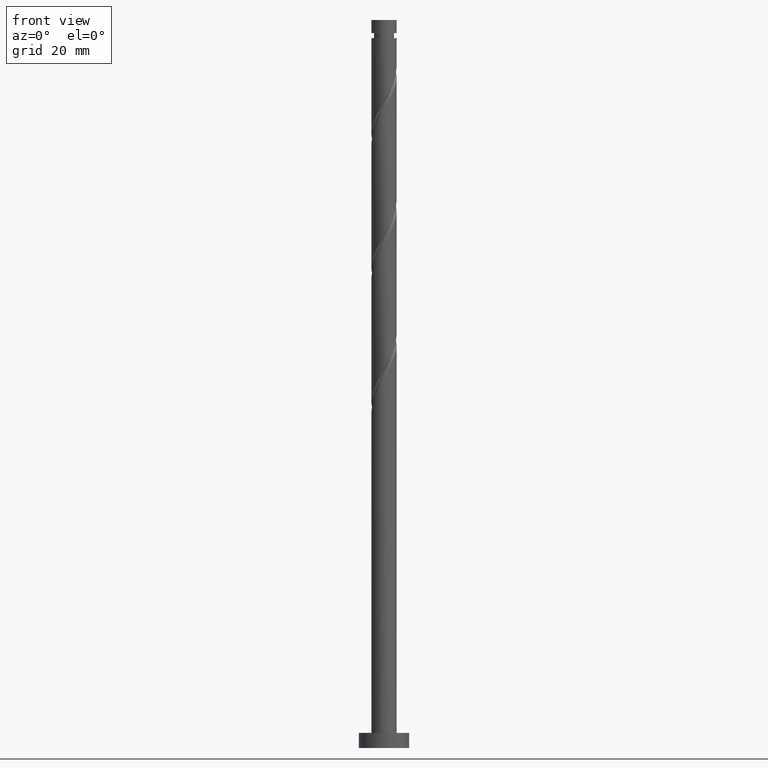
[diagram: clean part render]
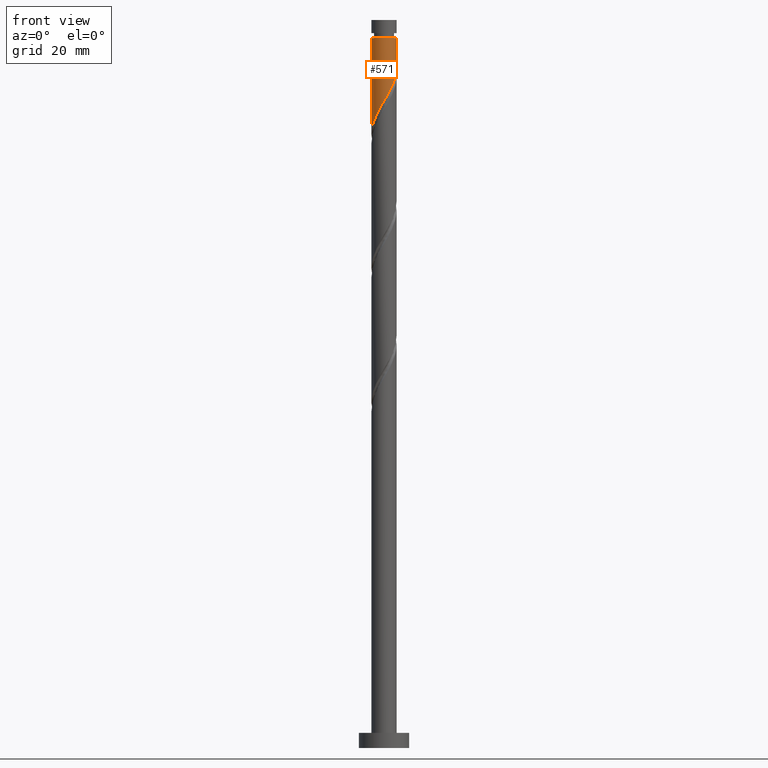
[diagram: same view with one face highlighted and labeled with its STEP entity id]
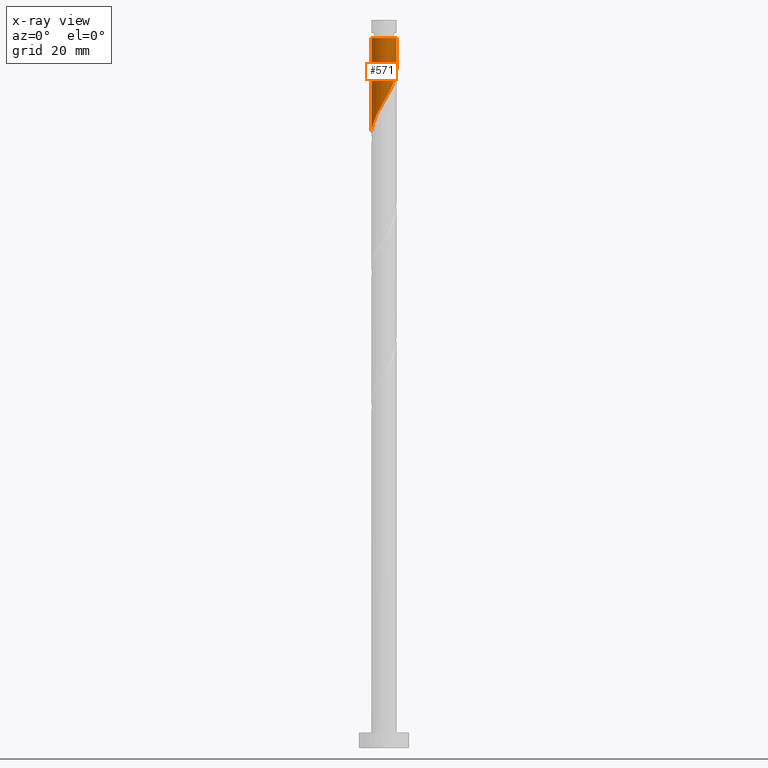
[diagram: x-ray of the same camera — body ghosted, the highlighted face saturated]
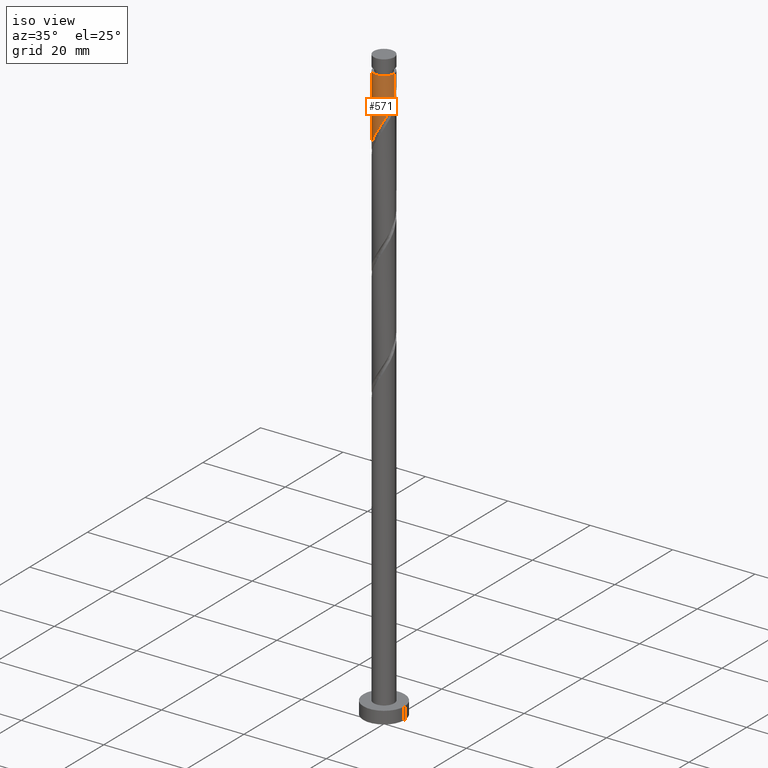
[diagram: same view with one face highlighted and labeled with its STEP entity id]
A machine part, front view. The second image highlights one B-rep face of the part: STEP entity #571.
The next image is the same camera in x-ray: the body ghosted, the highlighted face saturated — about 0% of this face is hidden behind the body in this view.
A second angle (iso view) of the same face is appended — the face is thin or edge-on in the first view.
In plain terms, the highlighted cylindrical surface (edge-blend (fillet) strip) has radius 2.5 mm, axis along (-0, -0, -1).
Its self-contained STEP definition (entity closure, byte-faithful):
#7 = CARTESIAN_POINT ( 'NONE',  ( -2.499999999999994227, 0.000000000000000000, 141.1221660529087103 ) ) ;
#97 = CARTESIAN_POINT ( 'NONE',  ( 0.5710429720501327688, -2.460307127265375815, 129.6070145377571805 ) ) ;
#99 = CARTESIAN_POINT ( 'NONE',  ( 0.000000000000000000, 0.000000000000000000, 144.7200000000000273 ) ) ;
#116 = CARTESIAN_POINT ( 'NONE',  ( -2.177375558832921776, -1.228428132125366501, 124.1524690832117273 ) ) ;
#129 = LINE ( 'NONE', #265, #1302 ) ;
#174 = ORIENTED_EDGE ( 'NONE', *, *, #1307, .T. ) ;
#196 = FACE_OUTER_BOUND ( 'NONE', #481, .T. ) ;
#224 = CARTESIAN_POINT ( 'NONE',  ( 2.499999999999999112, -0.07193881630955550888, 135.1828558608246738 ) ) ;
#236 = CARTESIAN_POINT ( 'NONE',  ( -2.435264748179749361, -0.5652305779706352507, 122.9403478710904949 ) ) ;
#265 = CARTESIAN_POINT ( 'NONE',  ( -2.500000000000000000, 0.000000000000000000, 144.7200000000000273 ) ) ;
#358 = VERTEX_POINT ( 'NONE', #1399 ) ;
#453 = DIRECTION ( 'NONE',  ( -0.000000000000000000, -0.000000000000000000, -1.000000000000000000 ) ) ;
#460 = DIRECTION ( 'NONE',  ( -0.000000000000000000, -0.000000000000000000, -1.000000000000000000 ) ) ;
#480 = CARTESIAN_POINT ( 'NONE',  ( -2.500000000000000444, -0.2863223184628047036, 122.4575804851808982 ) ) ;
#481 = EDGE_LOOP ( 'NONE', ( #549, #1623, #174, #1315 ) ) ;
#549 = ORIENTED_EDGE ( 'NONE', *, *, #1018, .F. ) ;
#571 = ADVANCED_FACE ( 'NONE', ( #196 ), #1134, .T. ) ;
#612 = CARTESIAN_POINT ( 'NONE',  ( 2.495863270706173864, -0.1437585960555959608, 135.0615599923026195 ) ) ;
#621 = CARTESIAN_POINT ( 'NONE',  ( -0.1452368982656256635, -2.521528798126809967, 128.3948933256359624 ) ) ;
#645 = EDGE_CURVE ( 'NONE', #358, #1380, #1124, .T. ) ;
#679 = LINE ( 'NONE', #1201, #713 ) ;
#713 = VECTOR ( 'NONE', #1083, 1000.000000000000000 ) ;
#717 = CARTESIAN_POINT ( 'NONE',  ( 0.000000000000000000, 0.000000000000000000, 141.1221660529087103 ) ) ;
#735 = CARTESIAN_POINT ( 'NONE',  ( 1.810534374112177325, -1.761012923450274048, 132.0312569619996168 ) ) ;
#746 = CARTESIAN_POINT ( 'NONE',  ( 2.475193905018187035, -0.5026095591624438752, 134.4554993862420531 ) ) ;
#785 = EDGE_CURVE ( 'NONE', #954, #1615, #1211, .T. ) ;
#884 = CARTESIAN_POINT ( 'NONE',  ( 2.354261794510394967, -0.8411013035946927063, 133.8494387801814582 ) ) ;
#896 = CARTESIAN_POINT ( 'NONE',  ( 2.499999999999999556, 1.286286580500695407E-15, 135.3049538655429274 ) ) ;
#954 = VERTEX_POINT ( 'NONE', #1308 ) ;
#990 = CARTESIAN_POINT ( 'NONE',  ( 1.241060336893709204, -2.199766004962784738, 130.8191357498783987 ) ) ;
#994 = DIRECTION ( 'NONE',  ( -1.000000000000000000, 0.000000000000000000, 0.000000000000000000 ) ) ;
#1018 = EDGE_CURVE ( 'NONE', #358, #954, #679, .T. ) ;
#1019 = DIRECTION ( 'NONE',  ( -0.000000000000000000, -0.000000000000000000, -1.000000000000000000 ) ) ;
#1028 = CARTESIAN_POINT ( 'NONE',  ( 2.021932029057389446, -1.470302985738607404, 132.6373175680602117 ) ) ;
#1083 = DIRECTION ( 'NONE',  ( -0.000000000000000000, -0.000000000000000000, -1.000000000000000000 ) ) ;
#1124 = CIRCLE ( 'NONE', #1598, 2.499999999999994227 ) ;
#1134 = CYLINDRICAL_SURFACE ( 'NONE', #1251, 2.500000000000000000 ) ;
#1138 = CARTESIAN_POINT ( 'NONE',  ( -0.8497505388409941629, -2.378471201873189500, 127.1827721135147584 ) ) ;
#1148 = CARTESIAN_POINT ( 'NONE',  ( -2.353996859965339805, -0.9153687888900179370, 123.5464084771511324 ) ) ;
#1158 = CARTESIAN_POINT ( 'NONE',  ( -2.000754257700505523, -1.541487475360716175, 124.7585296892723505 ) ) ;
#1201 = CARTESIAN_POINT ( 'NONE',  ( 2.500000000000000000, 3.061616997868383141E-16, 144.7200000000000273 ) ) ;
#1211 =( BOUNDED_CURVE ( )  B_SPLINE_CURVE ( 2, ( #896, #224, #612, #746, #884, #1534, #1028, #735, #1500, #990, #1278, #97, #1525, #621, #1401, #1138, #1283, #1387, #1271, #1158, #116, #1148, #236, #480, #1646 ),
 .UNSPECIFIED., .F., .T. ) 
 B_SPLINE_CURVE_WITH_KNOTS ( ( 3, 2, 2, 2, 2, 2, 2, 2, 2, 2, 2, 2, 3 ),
 ( 0.3045252162417513286, 0.3068181818181818232, 0.3181818181818181768, 0.3295454545454545303, 0.3409090909090908839, 0.3522727272727272929, 0.3636363636363636465, 0.3750000000000000000, 0.3863636363636363535, 0.3977272727272727071, 0.4090909090909091161, 0.4204545454545454697, 0.4295252162417514397 ),
 .UNSPECIFIED. ) 
 CURVE ( )  GEOMETRIC_REPRESENTATION_ITEM ( )  RATIONAL_B_SPLINE_CURVE ( ( 0.9061101570135576821, 0.9072237824201399015, 0.9090909090909173873, 0.8998376744372197367, 0.9090909090909173873, 0.8998376744372197367, 0.9090909090909173873, 0.8998376744372197367, 0.9090909090909173873, 0.8998376744372197367, 0.9090909090909173873, 0.8998376744372197367, 0.9090909090909173873, 0.8998376744372197367, 0.9090909090909173873, 0.8998376744372197367, 0.9090909090909173873, 0.8998376744372197367, 0.9090909090909173873, 0.8998376744372197367, 0.9090909090909173873, 0.8998376744372197367, 0.9090909090909173873, 0.9017048011079971115, 0.9061101570135576821 ) ) 
 REPRESENTATION_ITEM ( '' )  );
#1218 = CARTESIAN_POINT ( 'NONE',  ( -2.499999999999999556, 1.697599149846847950E-15, 121.9716205322095846 ) ) ;
#1246 = DIRECTION ( 'NONE',  ( -1.000000000000000000, 0.000000000000000000, 0.000000000000000000 ) ) ;
#1251 = AXIS2_PLACEMENT_3D ( 'NONE', #99, #460, #994 ) ;
#1271 = CARTESIAN_POINT ( 'NONE',  ( -1.743088351060507302, -1.792105744758706987, 125.3645902953329454 ) ) ;
#1278 = CARTESIAN_POINT ( 'NONE',  ( 0.9060516544719204868, -2.330036566114080276, 130.2130751438178038 ) ) ;
#1283 = CARTESIAN_POINT ( 'NONE',  ( -1.167586491630751455, -2.210597608014943649, 126.5767115074541493 ) ) ;
#1302 = VECTOR ( 'NONE', #1019, 1000.000000000000000 ) ;
#1307 = EDGE_CURVE ( 'NONE', #1380, #1615, #129, .T. ) ;
#1308 = CARTESIAN_POINT ( 'NONE',  ( 2.499999999999999556, 1.286286580500695407E-15, 135.3049538655429274 ) ) ;
#1315 = ORIENTED_EDGE ( 'NONE', *, *, #785, .F. ) ;
#1380 = VERTEX_POINT ( 'NONE', #7 ) ;
#1387 = CARTESIAN_POINT ( 'NONE',  ( -1.485422444420508858, -2.042724014156698242, 125.9706509013935261 ) ) ;
#1399 = CARTESIAN_POINT ( 'NONE',  ( 2.499999999999994227, 3.061616997868380183E-16, 141.1221660529087103 ) ) ;
#1401 = CARTESIAN_POINT ( 'NONE',  ( -0.4974937185533099271, -2.449999999999998845, 127.7888327195753675 ) ) ;
#1500 = CARTESIAN_POINT ( 'NONE',  ( 1.525797355502942709, -1.980389464206528949, 131.4251963559389935 ) ) ;
#1525 = CARTESIAN_POINT ( 'NONE',  ( 0.2129030368922529837, -2.490917962696093113, 129.0009539316965856 ) ) ;
#1534 = CARTESIAN_POINT ( 'NONE',  ( 2.233329684002602900, -1.179593048026941426, 133.2433781741208350 ) ) ;
#1598 = AXIS2_PLACEMENT_3D ( 'NONE', #717, #453, #1246 ) ;
#1615 = VERTEX_POINT ( 'NONE', #1218 ) ;
#1623 = ORIENTED_EDGE ( 'NONE', *, *, #645, .T. ) ;
#1646 = CARTESIAN_POINT ( 'NONE',  ( -2.499999999999999556, 1.697599149846847950E-15, 121.9716205322095846 ) ) ;